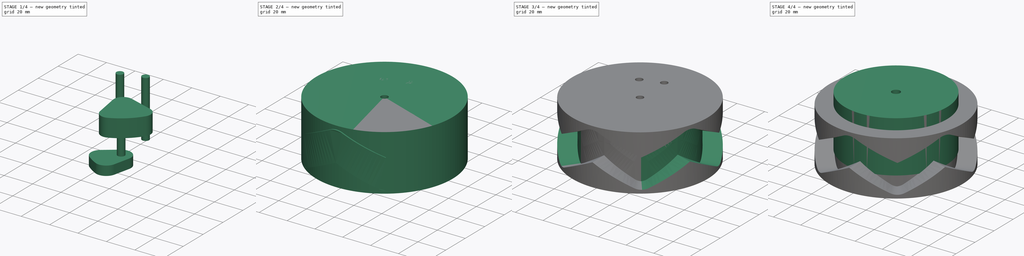
[diagram: build sequence overview — one tinted view per stage of 4, left to right]
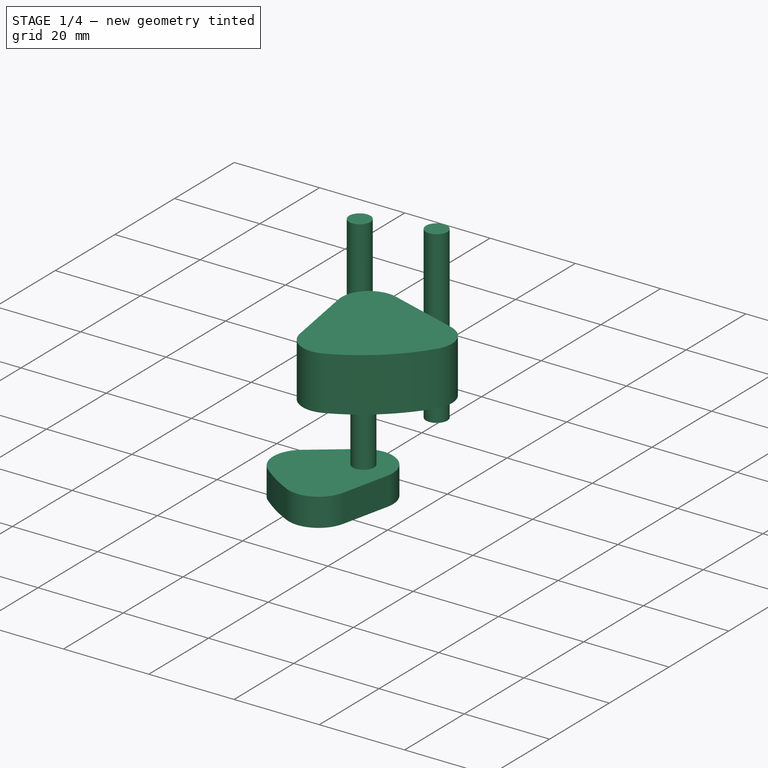
[diagram: stage 1 of 4 — iso view after this stage's code; geometry added in this stage tinted green]
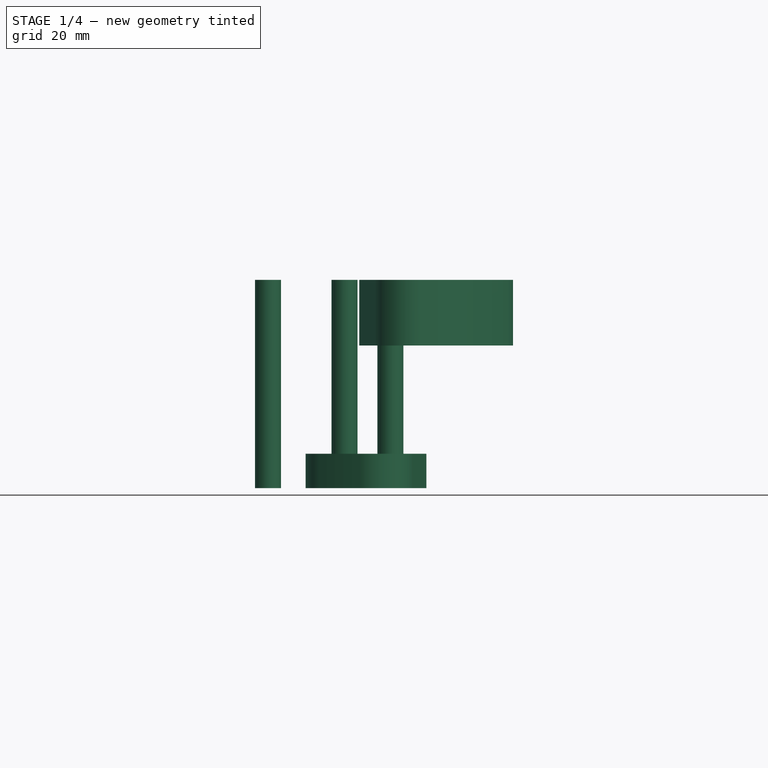
[diagram: stage 1 of 4 — front view after this stage's code; geometry added in this stage tinted green]
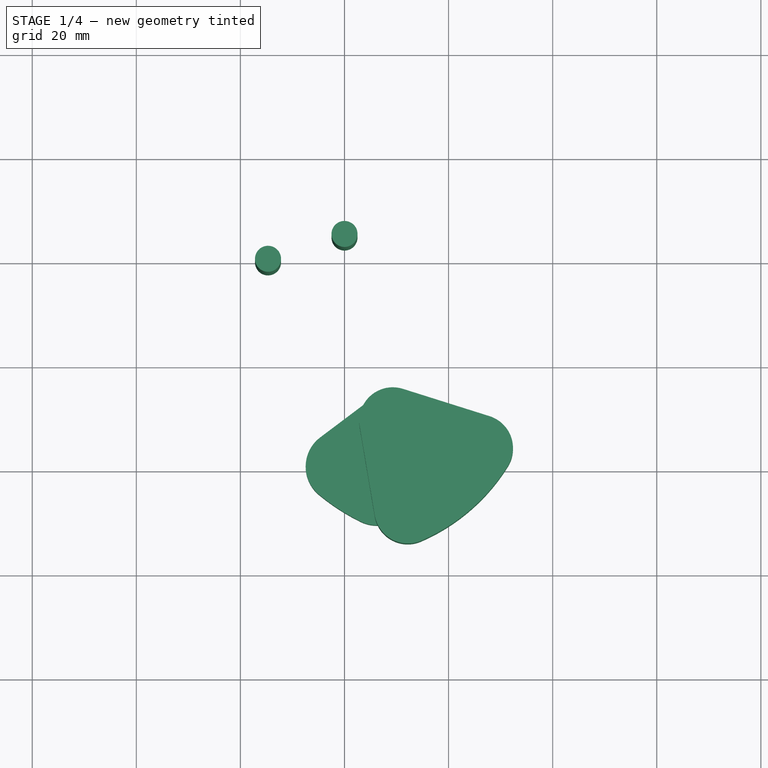
[diagram: stage 1 of 4 — top view after this stage's code; geometry added in this stage tinted green]
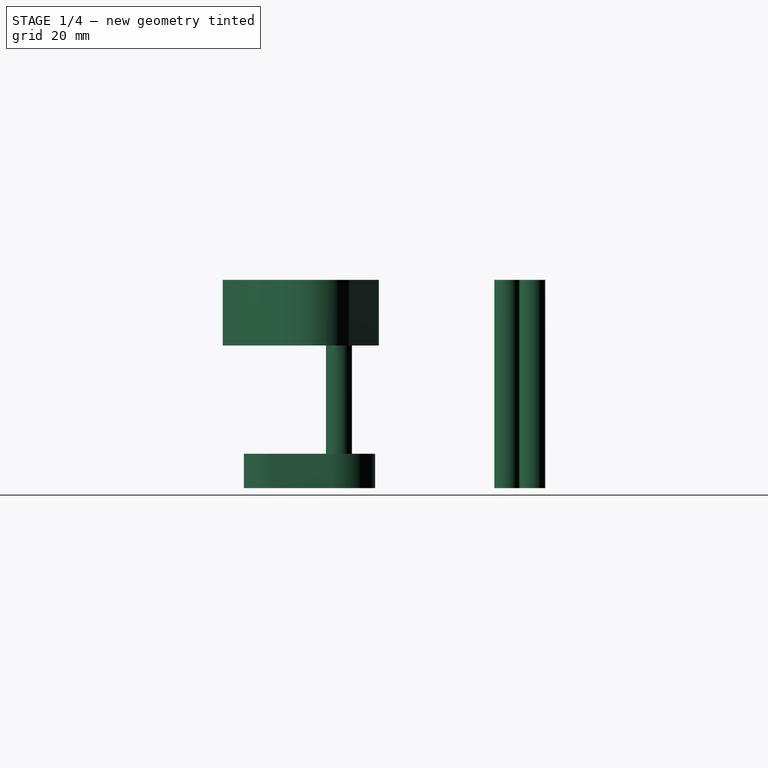
[diagram: stage 1 of 4 — right view after this stage's code; geometry added in this stage tinted green]
FCSTD DOCUMENT  (FreeCAD 0.22R38467 (Git))
Label: Cam Cylinder.FCStd
objects: Sketcher::SketchObject×5, Part::FeaturePython×4, Part::Cut×4, PartDesign::Line×4, Part::Extrusion×3, Part::Cylinder×1, App::VarSet×1, App::Part×1
note: 26 computed .brp shape members not serialized (recipe doc carries the construction recipe); baked Part::Feature solids carry a one-line shape summary decoded from their .brp

FEATURE [Sketcher::SketchObject] Sketch  label="Hole Profile"
  ArcFitTolerance = 1e-06
  AttachmentSupport = -> [Cut]
  FullyConstrained = true
  MakeInternals = false
  MapMode = 5
  Placement = pos=(0,0,40) rot=(0,0,1;0rad)
  sketch-geometry (6):
    g0: Circle CenterX=0 CenterY=25 CenterZ=0 NormalX=0 NormalY=0 NormalZ=1 AngleXU=0 Radius=2.5
    g1: LineSegment [constr] StartX=-14.6946 StartY=20.2254 StartZ=0 EndX=14.6946 EndY=-20.2254 EndZ=0
    g2: Circle CenterX=8.81678 CenterY=-12.1353 CenterZ=0 NormalX=0 NormalY=0 NormalZ=1 AngleXU=0 Radius=2.5
    g3: Circle [constr] CenterX=0 CenterY=0 CenterZ=0 NormalX=0 NormalY=0 NormalZ=1 AngleXU=0 Radius=25
    g4: Circle CenterX=-14.6946 CenterY=20.2254 CenterZ=0 NormalX=0 NormalY=0 NormalZ=1 AngleXU=0 Radius=2.5
    g5: Circle [constr] CenterX=0 CenterY=0 CenterZ=0 NormalX=0 NormalY=0 NormalZ=1 AngleXU=0 Radius=15
  constraints (16):
    c: PointOnObject(g-1,g1)
    c: Coincident(g3,g-1)
    c: Radius(g3) = 25
    c: PointOnObject(g0,g3)
    c: PointOnObject(g0,g-2)
    c: PointOnObject(g1,g3)
    c: Coincident(g4,g1)
    c: Equal(g2,g4)
    c: Equal(g4,g0)
    c: Angle(g1,g-2) = -0.628319
    c: Diameter(g5) = 30
    c: Coincident(g5,g3)
    c: Radius(g2) = 2.5
    c: PointOnObject(g1,g3)
    c: PointOnObject(g2,g5)
    c: PointOnObject(g2,g1)
FEATURE [Part::Extrusion] Extrude
  Base = -> Sketch
  Dir = (0,0,1)
  DirMode = 2
  FaceMakerClass = Part::FaceMakerBullseye
  FaceMakerMode = 3
  LengthFwd = 40
  LengthRev = 0
  Reversed = true
  Solid = true
  Symmetric = false
  expr: LengthFwd = VarSet.Base_CylinderHeight
FEATURE [PartDesign::Line] HoleAxis_1  label="Bottom AP"
  AttacherType = Attacher::AttachEngineLine
  AttachmentSupport = -> [Cut001]
  Length = 4.12311
  MapMode = 19
  ResizeMode = 1
FEATURE [PartDesign::Line] HoleAxis_2  label="Link Rod AP"
  AttacherType = Attacher::AttachEngineLine
  AttachmentSupport = -> [Cut001]
  Length = 7.04534
  MapMode = 19
  Placement = pos=(0,25,0) rot=(0,0,1;0rad)
  ResizeMode = 1
FEATURE [PartDesign::Line] HoleAxis_3  label="Control AP"
  AttacherType = Attacher::AttachEngineLine
  AttachmentOffset = pos=(0,0,0) rot=(0,1,0;3.14159rad)
  AttachmentSupport = -> [Cut001]
  Length = 7.04534
  MapMode = 19
  Placement = pos=(8.81678,-12.1353,0) rot=(0,1,0;3.14159rad)
  ResizeMode = 1
FEATURE [PartDesign::Line] HoleAxis_4  label="Top AP"
  AttacherType = Attacher::AttachEngineLine
  AttachmentOffset = pos=(0,0,1.5) rot=(0,0,1;0rad)
  AttachmentSupport = -> [Cut001]
  Length = 7.04534
  MapMode = 19
  Placement = pos=(0,0,41.5) rot=(0,0,1;0rad)
  ResizeMode = 1
FEATURE [Sketcher::SketchObject] Sketch001  label="Master Sketch"
  ArcFitTolerance = 1e-06
  FullyConstrained = false
  MakeInternals = false
  sketch-geometry (42):
    g0: Circle CenterX=-4e-16 CenterY=0 CenterZ=0 NormalX=0 NormalY=0 NormalZ=1 AngleXU=0 Radius=50
    g1: LineSegment [constr] StartX=-4e-16 StartY=0 StartZ=0 EndX=-15.4508 EndY=-47.5528 EndZ=0
    g2: LineSegment [constr] StartX=-4e-16 StartY=0 StartZ=0 EndX=15.4508 EndY=-47.5528 EndZ=0
    g3: LineSegment StartX=4.16347 StartY=-17.7687 StartZ=0 EndX=-5.80371 EndY=-32.7572 EndZ=0
    g4: LineSegment StartX=-6.93214 StartY=-16.3948 StartZ=0 EndX=-14.1307 EndY=-27.2198 EndZ=0
    g5: ArcOfCircle [constr] CenterX=1e-16 CenterY=-15 CenterZ=0 NormalX=0 NormalY=0 NormalZ=1 AngleXU=0 Radius=15 StartAngle=4.08407 EndAngle=5.34071
    g6: Circle CenterX=-9.04623 CenterY=-28.6036 CenterZ=0 NormalX=0 NormalY=0 NormalZ=1 AngleXU=0 Radius=2.5
    g7: Circle CenterX=1e-16 CenterY=-15 CenterZ=0 NormalX=0 NormalY=0 NormalZ=1 AngleXU=0 Radius=2.5
    g8: ArcOfCircle CenterX=-12.4904 CenterY=-6.69401 CenterZ=0 NormalX=0 NormalY=0 NormalZ=1 AngleXU=0 Radius=5 StartAngle=0.983956 EndAngle=4.12555
    g9: LineSegment StartX=-6.93214 StartY=-16.3948 StartZ=0 EndX=-15.2591 EndY=-10.8575 EndZ=0
    g10: LineSegment StartX=2.76866 StartY=-10.8365 StartZ=0 EndX=-9.72176 EndY=-2.53054 EndZ=0
    g11: ArcOfCircle CenterX=1e-16 CenterY=-15 CenterZ=0 NormalX=0 NormalY=0 NormalZ=1 AngleXU=0 Radius=5 StartAngle=5.69635 EndAngle=7.26714
    g12: ArcOfCircle CenterX=-9.96718 CenterY=-29.9885 CenterZ=0 NormalX=0 NormalY=0 NormalZ=1 AngleXU=0 Radius=5 StartAngle=2.55475 EndAngle=5.69635
    g13: ArcOfCircle CenterX=-9.96718 CenterY=-29.9885 CenterZ=0 NormalX=0 NormalY=0 NormalZ=1 AngleXU=0 Radius=2.7 StartAngle=2.55475 EndAngle=5.69635
    g14: ArcOfCircle CenterX=-8.30599 CenterY=-27.4904 CenterZ=0 NormalX=0 NormalY=0 NormalZ=1 AngleXU=0 Radius=2.7 StartAngle=5.69635 EndAngle=8.83794
    g15: LineSegment [constr] StartX=-12.2155 StartY=-28.4934 StartZ=0 EndX=-10.5543 EndY=-25.9953 EndZ=0
    g16: LineSegment StartX=-7.71891 StartY=-31.4836 StartZ=0 EndX=-6.05771 EndY=-28.9855 EndZ=0
    g17: LineSegment [constr] StartX=1e-16 StartY=-15 StartZ=0 EndX=-20.3856 EndY=-45.6555 EndZ=0
    g18: Circle CenterX=-12.4904 CenterY=-6.69401 CenterZ=0 NormalX=0 NormalY=0 NormalZ=1 AngleXU=0 Radius=2.5
    g19: ArcOfCircle CenterX=-4e-16 CenterY=0 CenterZ=0 NormalX=0 NormalY=0 NormalZ=1 AngleXU=0 Radius=27.6248 StartAngle=1.25664 EndAngle=1.88496
    g20: ArcOfCircle CenterX=-7.70217 CenterY=23.7048 CenterZ=0 NormalX=0 NormalY=0 NormalZ=1 AngleXU=0 Radius=2.7 StartAngle=1.88496 EndAngle=5.02655
    g21: ArcOfCircle CenterX=7.70217 CenterY=23.7048 CenterZ=0 NormalX=0 NormalY=0 NormalZ=1 AngleXU=0 Radius=2.7 StartAngle=4.39823 EndAngle=7.53982
    g22: ArcOfCircle CenterX=-4e-16 CenterY=0 CenterZ=0 NormalX=0 NormalY=0 NormalZ=1 AngleXU=0 Radius=22.2248 StartAngle=1.25664 EndAngle=1.88496
    g23: LineSegment [constr] StartX=-4e-16 StartY=0 StartZ=0 EndX=7.70217 EndY=23.7048 EndZ=0
    g24: LineSegment [constr] StartX=-4e-16 StartY=0 StartZ=0 EndX=-7.70217 EndY=23.7048 EndZ=0
    g25: Circle CenterX=-0.054258 CenterY=24.7641 CenterZ=0 NormalX=0 NormalY=0 NormalZ=1 AngleXU=0 Radius=2.5
    g26: ArcOfCircle CenterX=-15.3566 CenterY=-24.6032 CenterZ=0 NormalX=0 NormalY=0 NormalZ=1 AngleXU=0 Radius=5 StartAngle=5.39165 EndAngle=6.00104
    g27: ArcOfCircle CenterX=-15.3566 CenterY=-24.6032 CenterZ=0 NormalX=0 NormalY=0 NormalZ=1 AngleXU=0 Radius=4.39478 StartAngle=5.2351 EndAngle=6.15759
    g28: LineSegment [constr] StartX=-11.3849 StartY=-27.2444 StartZ=0 EndX=-13.3001 EndY=-25.9708 EndZ=0
    g29: LineSegment [constr] StartX=-13.3001 StartY=-25.9708 StartZ=0 EndX=-10.5543 EndY=-25.9953 EndZ=0
    g30: LineSegment [constr] StartX=-13.3001 StartY=-25.9708 StartZ=0 EndX=-12.2155 EndY=-28.4934 EndZ=0
    g31: LineSegment StartX=-10.9964 StartY=-25.1537 StartZ=0 EndX=-11.4964 EndY=-25.1493 EndZ=0
    g32: LineSegment StartX=-11.4964 StartY=-25.1493 StartZ=0 EndX=-13.3601 EndY=-27.9519 EndZ=0
    g33: LineSegment StartX=-13.3601 StartY=-27.9519 StartZ=0 EndX=-13.1626 EndY=-28.4112 EndZ=0
    g34: LineSegment [constr] StartX=-4e-16 StartY=0 StartZ=0 EndX=-75.0332 EndY=-40.2127 EndZ=0
    g35: LineSegment [constr] StartX=-17.7952 StartY=13.7094 StartZ=0 EndX=6.06492 EndY=-30.8114 EndZ=0
    g36: Circle CenterX=-4e-16 CenterY=0 CenterZ=0 NormalX=0 NormalY=0 NormalZ=1 AngleXU=0 Radius=11
    g37: Circle CenterX=-4e-16 CenterY=0 CenterZ=0 NormalX=0 NormalY=0 NormalZ=1 AngleXU=0 Radius=30
    g38: Circle [constr] CenterX=-6.1698 CenterY=-3.30659 CenterZ=0 NormalX=0 NormalY=0 NormalZ=1 AngleXU=0 Radius=11
    g39: Circle [constr] CenterX=4.407 CenterY=2.36185 CenterZ=0 NormalX=0 NormalY=0 NormalZ=1 AngleXU=0 Radius=30
    g40: LineSegment [constr] StartX=-13.8538 StartY=-26.8035 StartZ=0 EndX=-12.6421 EndY=-29.6216 EndZ=0
    g41: LineSegment [constr] StartX=-12.7463 StartY=-25.1381 StartZ=0 EndX=-9.67889 EndY=-25.1655 EndZ=0
  constraints (104):
    c: Diameter(g0) = 100
    c: Coincident(g0,g-1)
    c: Coincident(g1,g0)
    c: PointOnObject(g1,g0)
    c: Coincident(g2,g0)
    c: Symmetric(g2,g1,g-2)
    c: Angle(g1,g2) = 0.628319
    c: PointOnObject(g5,g1)
    c: PointOnObject(g5,g2)
    c: Diameter(g6) = 5
    c: Equal(g7,g6)
    c: Tangent(g8,g9) = 1.5708
    c: Tangent(g8,g10) = -1.5708
    c: Coincident(g9,g4)
    c: Parallel(g3,g4)
    c: Parallel(g9,g10)
    c: Coincident(g11,g7)
    c: Tangent(g11,g3) = 1.5708
    c: Tangent(g11,g10) = -1.5708
    c: Coincident(g7,g5)
    c: PointOnObject(g5,g-2)
    c: DistanceY(g5,g0) = 15
    c: Perpendicular(g9,g4)
    c: Equal(g11,g8)
    c: Radius(g5) = 15
    c: Equal(g12,g8)
    c: Tangent(g12,g3) = 1.5708
    c: Tangent(g12,g4) = -1.5708
    c: Radius(g8) = 5
    c: Distance(g8,g5) = 15
    c: Tangent(g13,g15) = 1.5708
    c: Tangent(g13,g16) = -1.5708
    c: Tangent(g14,g15) = 1.5708
    c: Tangent(g14,g16) = -1.5708
    c: Equal(g13,g14)
    c: Distance(g13,g14) = 3
    c: Radius(g14) = 2.7
    c: Coincident(g17,g5)
    c: PointOnObject(g17,g0)
    c: PointOnObject(g13,g17)
    c: Distance(g14,g5) = 15
    c: PointOnObject(g14,g17)
    c: Coincident(g13,g12)
    c: Distance(g6,g0) = 30
    c: PointOnObject(g6,g17)
    c: Diameter(g18) = 5
    c: Coincident(g18,g8)
    c: Coincident(g19,g22)
    c: Tangent(g22,g21) = 1.5708
    c: Tangent(g22,g20) = 1.5708
    c: Tangent(g19,g21) = -1.5708
    c: Tangent(g19,g20) = -1.5708
    c: Coincident(g19,g0)
    c: Coincident(g23,g0)
    c: Coincident(g23,g21)
    c: Coincident(g24,g0)
    c: Coincident(g24,g20)
    c: Angle(g23,g24) = 0.628319
    c: Distance(g20,g19) = 5.4
    c: Angle(g23,g-2) = 0.314159
    c: Diameter(g25) = 5
    c: Coincident(g26,g14)
    c: Coincident(g26,g13)
    c: Coincident(g27,g26)
    c: Symmetric(g15,g15,g28)
    c: Perpendicular(g15,g28)
    c: Coincident(g29,g14)
    c: Coincident(g30,g29)
    c: Coincident(g30,g13)
    c: Coincident(g27,g31)
    c: Coincident(g31,g32)
    c: Coincident(g32,g33)
    c: Coincident(g33,g27)
    c: Distance(g31) = 0.5
    c: Coincident(g28,g29)
    c: PointOnObject(g28,g4)
    c: Radius(g26) = 5
    c: Equal(g33,g31)
    c: Coincident(g34,g0)
    c: PointOnObject(g8,g34)
    c: Perpendicular(g34,g35)
    c: Diameter(g36) = 22
    c: Coincident(g36,g0)
    c: Diameter(g37) = 60
    c: Coincident(g37,g0)
    c: PointOnObject(g38,g34)
    c: Distance(g38,g0) = 7
    c: PointOnObject(g39,g34)
    c: Distance(g39,g0) = 5
    c: Equal(g39,g37)
    c: Equal(g38,g36)
    c: PointOnObject(g40,g4)
    c: PointOnObject(g40,g13)
    c: PointOnObject(g41,g4)
    c: PointOnObject(g41,g14)
    c: Parallel(g41,g29)
    c: Parallel(g30,g40)
    c: Distance(g40,g28) = 1
    c: Distance(g41,g28) = 1
    c: PointOnObject(g31,g41)
    c: PointOnObject(g32,g40)
    c: PointOnObject(g27,g40)
    c: PointOnObject(g27,g41)
    c: Distance(g41,g31) = 1.25
FEATURE [Sketcher::SketchObject] Sketch002  label="Actuator pocket profile"
  ArcFitTolerance = 1e-06
  AttachmentSupport = -> [Cut001]
  FullyConstrained = false
  MakeInternals = false
  MapMode = 5
  Placement = pos=(0,0,40) rot=(0,0,1;0rad)
  sketch-geometry (7):
    g0: ArcOfCircle CenterX=9.28114 CenterY=-10.9109 CenterZ=0 NormalX=0 NormalY=0 NormalZ=1 AngleXU=0 Radius=6.44758 StartAngle=1.26535 EndAngle=3.30889
    g1: ArcOfCircle CenterX=12.171 CenterY=-28.0235 CenterZ=0 NormalX=0 NormalY=0 NormalZ=1 AngleXU=0 Radius=6.44758 StartAngle=3.30889 EndAngle=5.12212
    g2: LineSegment StartX=11.22 StartY=-4.76175 StartZ=0 EndX=27.8677 EndY=-10.011 EndZ=0
    g3: LineSegment StartX=2.92357 StartY=-11.9845 StartZ=0 EndX=5.81347 EndY=-29.0971 EndZ=0
    g4: ArcOfCircle CenterX=25.9288 CenterY=-16.1601 CenterZ=0 NormalX=0 NormalY=0 NormalZ=1 AngleXU=0 Radius=6.44758 StartAngle=5.72584 EndAngle=7.54854
    g5: LineSegment [constr] StartX=0 StartY=0 StartZ=0 EndX=38.9895 EndY=-45.8361 EndZ=0
    g6: ArcOfCircle CenterX=0 CenterY=0 CenterZ=0 NormalX=0 NormalY=0 NormalZ=1 AngleXU=0 Radius=37 StartAngle=5.12212 EndAngle=5.72584
  constraints (14):
    c: Tangent(g0,g2) = 1.5708
    c: Tangent(g0,g3) = -1.5708
    c: Tangent(g1,g3) = -1.5708
    c: Equal(g0,g1)
    c: Equal(g1,g4)
    c: Tangent(g4,g2) = 1.5708
    c: Coincident(g5,g-1)
    c: Distance(g1,g4) = 22
    c: PointOnObject(g0,g5)
    c: Distance(g0,g0) = 11
    c: Coincident(g6,g5)
    c: Tangent(g6,g1) = -1.5708
    c: Tangent(g6,g4) = -1.5708
    c: Radius(g6) = 37
FEATURE [Part::Extrusion] Extrude001  label="Actuator Pocket"
  Base = -> Sketch002
  Dir = (0,0,1)
  DirMode = 2
  FaceMakerClass = Part::FaceMakerBullseye
  FaceMakerMode = 3
  LengthFwd = 12.6
  LengthRev = 0
  Reversed = true
  Solid = true
  Symmetric = false
FEATURE [Sketcher::SketchObject] Sketch003  label="Ctrl Pocket Profile"
  ArcFitTolerance = 1e-06
  AttachmentSupport = -> [Cut002]
  FullyConstrained = false
  MakeInternals = false
  MapMode = 5
  Placement = pos=(0,0,0) rot=(1,0,0;3.14159rad)
  sketch-geometry (7):
    g0: LineSegment [constr] StartX=20.9255 StartY=-6.66032 StartZ=0 EndX=-0.898333 EndY=27.1 EndZ=0
    g1: ArcOfCircle CenterX=8.74 CenterY=12.19 CenterZ=0 NormalX=0 NormalY=0 NormalZ=1 AngleXU=0 Radius=7 StartAngle=4.06766 EndAngle=6.50484
    g2: ArcOfCircle CenterX=-0.45953 CenterY=19.1073 CenterZ=0 NormalX=0 NormalY=0 NormalZ=1 AngleXU=0 Radius=7 StartAngle=2.26352 EndAngle=4.06766
    g3: ArcOfCircle CenterX=6.20957 CenterY=23.4184 CenterZ=0 NormalX=0 NormalY=0 NormalZ=1 AngleXU=0 Radius=7 StartAngle=0.221657 EndAngle=2.0258
    g4: ArcOfCircle CenterX=20.9255 CenterY=-6.66032 CenterZ=0 NormalX=0 NormalY=0 NormalZ=1 AngleXU=0 Radius=40.4856 StartAngle=2.0258 EndAngle=2.26352
    g5: LineSegment StartX=-4.66639 StartY=13.5124 StartZ=0 EndX=4.53314 EndY=6.59515 EndZ=0
    g6: LineSegment StartX=15.5687 StartY=13.7289 StartZ=0 EndX=13.0383 EndY=24.9573 EndZ=0
  constraints (16):
    c: Equal(g3,g1)
    c: Equal(g1,g2)
    c: Equal(g5,g6)
    c: Radius(g1) = 7
    c: Tangent(g4,g2) = -1.5708
    c: Tangent(g5,g2) = -1.5708
    c: Tangent(g5,g1) = -1.5708
    c: Tangent(g6,g1) = -1.5708
    c: Tangent(g6,g3) = -1.5708
    c: Coincident(g0,g4)
    c: Symmetric(g3,g2,g0)
    c: Tangent(g4,g3) = -1.5708
    c: DistanceY(g-1,g1) = 12.19
    c: DistanceX(g-1,g1) = 8.74
    c: Distance(g3,g1) = 11.51
    c: Angle(g-2,g6) = 0.221657
FEATURE [Part::Extrusion] Extrude002  label="Control Arm Pocket"
  Base = -> Sketch003
  Dir = (0,0,-1)
  DirMode = 2
  FaceMakerClass = Part::FaceMakerBullseye
  FaceMakerMode = 3
  LengthFwd = 6.6
  LengthRev = 0
  Reversed = true
  Solid = true
  Symmetric = false
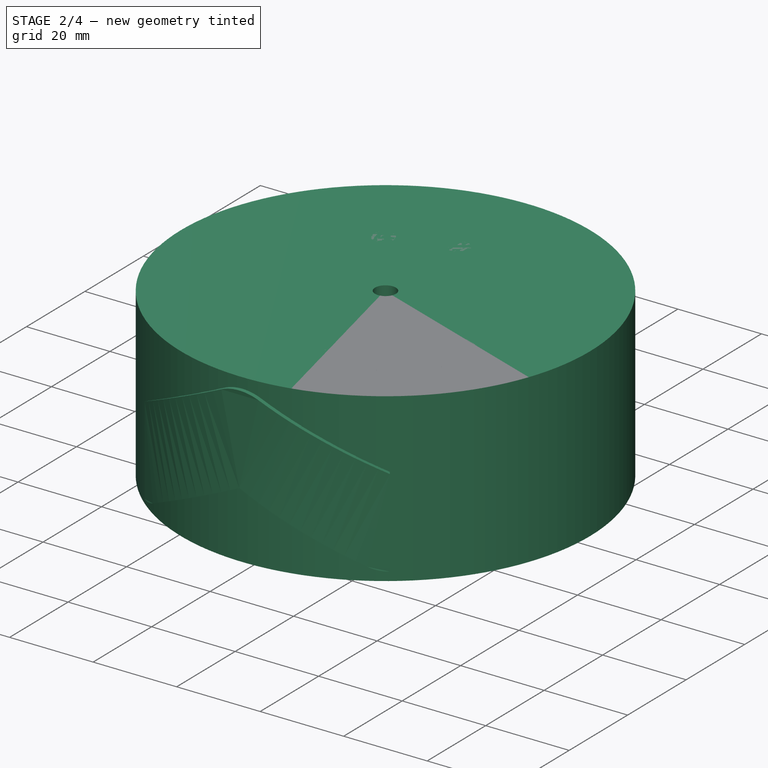
[diagram: stage 2 of 4 — iso view after this stage's code; geometry added in this stage tinted green]
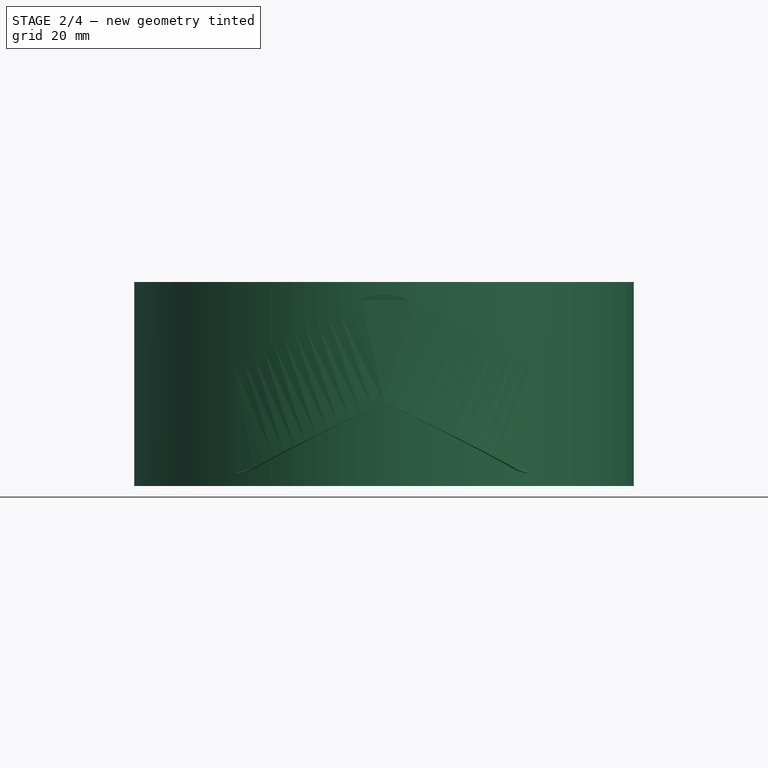
[diagram: stage 2 of 4 — front view after this stage's code; geometry added in this stage tinted green]
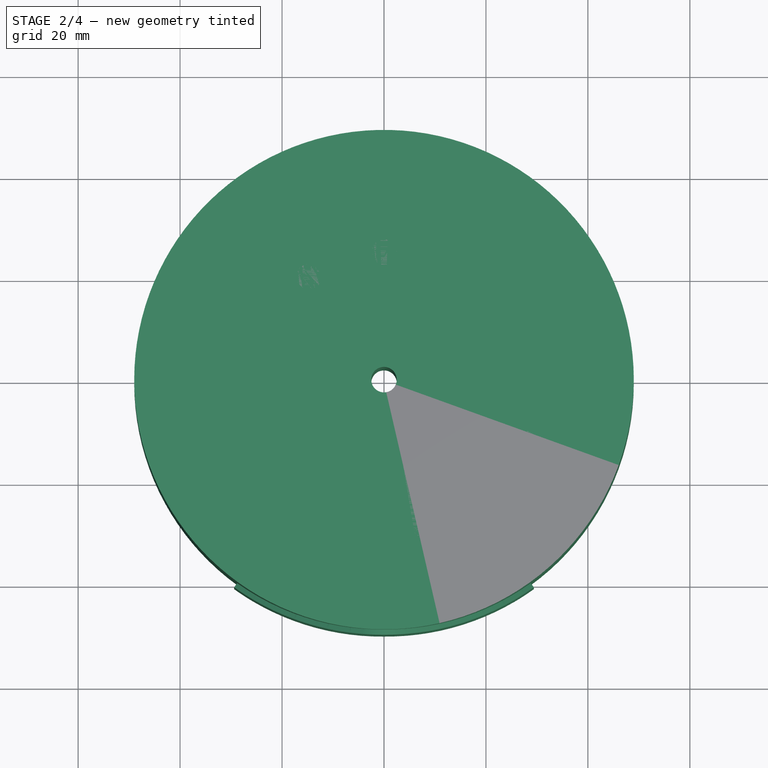
[diagram: stage 2 of 4 — top view after this stage's code; geometry added in this stage tinted green]
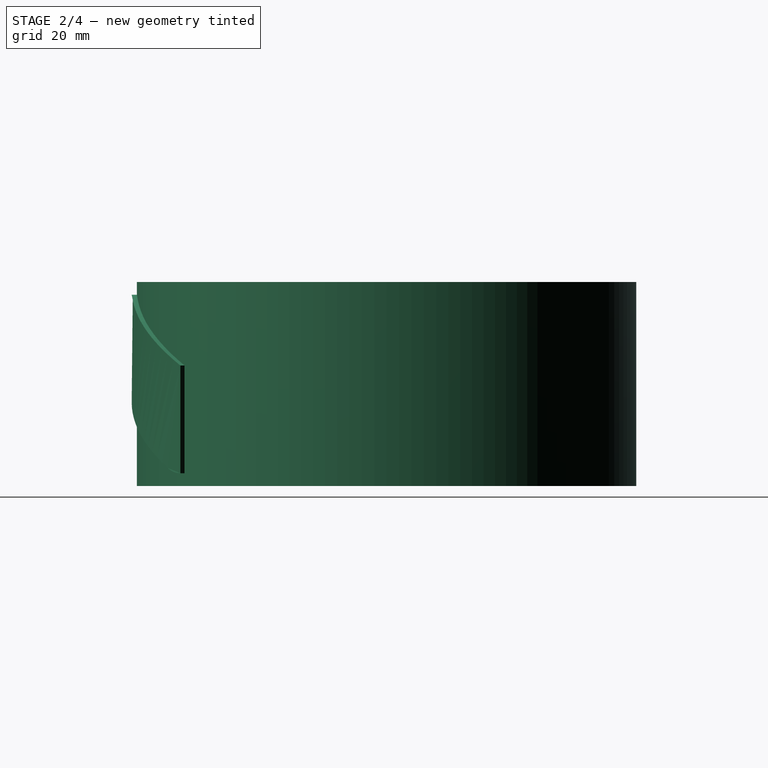
[diagram: stage 2 of 4 — right view after this stage's code; geometry added in this stage tinted green]
FEATURE [Part::Cylinder] Cylinder
  Angle = 72
  AttacherType = Attacher::AttachEngine3D
  FirstAngle = 0
  Height = 40
  Placement = pos=(0,0,0) rot=(0,0,1;-2.19911rad)
  Radius = 49
  SecondAngle = 0
  expr: .Placement.Rotation.Angle = -90 ° - 180 ° / VarSet.Peaks
  expr: Angle = 360 / VarSet.Peaks
  expr: Height = VarSet.Base_CylinderHeight
  expr: Radius = VarSet.Base_CylinderRadius
FEATURE [App::VarSet] VarSet
  Base_CylinderHeight = 40
  Base_CylinderRadius = 49
  BottomPad = 2.5
  CamTravel = 15
  GrooveDepth = 12
  InnerRadius = 2.5
  NomGrooveWidth = 20
  Peaks = 5
  TopPad = 2.5
  expr: Base_CylinderHeight = NomGrooveWidth + CamTravel + TopPad + BottomPad
FEATURE [Sketcher::SketchObject] Mapped_Sketch
  ArcFitTolerance = 1e-06
  AttachmentSupport = -> [Cylinder]
  FullyConstrained = true
  MakeInternals = false
  expr: .Constraints.CamTravel = VarSet.CamTravel
  expr: .Constraints.CylinderHeight = Cylinder.Height
  expr: .Constraints.ForcedTrackWidth = VarSet.NomGrooveWidth
  expr: .Constraints.NomTrackWidth = VarSet.NomGrooveWidth
  expr: .Constraints.arclength = 2 * pi * Cylinder.Radius / VarSet.Peaks
  expr: Constraints[33] = VarSet.NomGrooveWidth / 2 + VarSet.TopPad
  sketch-geometry (21):
    g0: LineSegment [constr] StartX=0 StartY=0 StartZ=0 EndX=61.5752 EndY=0 EndZ=0
    g1: LineSegment [constr] StartX=61.5752 StartY=0 StartZ=0 EndX=61.5752 EndY=40 EndZ=0
    g2: LineSegment [constr] StartX=61.5752 StartY=40 StartZ=0 EndX=0 EndY=40 EndZ=0
    g3: LineSegment [constr] StartX=0 StartY=40 StartZ=0 EndX=0 EndY=0 EndZ=0
    g4: ArcOfCircle [constr] CenterX=0 CenterY=27.5 CenterZ=0 NormalX=0 NormalY=0 NormalZ=1 AngleXU=0 Radius=10 StartAngle=4.71239 EndAngle=7.85398
    g5: Circle [constr] CenterX=30.7876 CenterY=12.5 CenterZ=0 NormalX=0 NormalY=0 NormalZ=1 AngleXU=0 Radius=10
    g6: ArcOfCircle [constr] CenterX=61.5752 CenterY=27.5 CenterZ=0 NormalX=0 NormalY=0 NormalZ=1 AngleXU=0 Radius=10 StartAngle=1.5708 EndAngle=4.71239
    g7: LineSegment StartX=0 StartY=37.5 StartZ=0 EndX=0 EndY=16.3763 EndZ=0
    g8: LineSegment StartX=61.5752 StartY=37.5 StartZ=0 EndX=61.5752 EndY=16.3763 EndZ=0
    g9: LineSegment StartX=4.37991 StartY=36.4898 StartZ=0 EndX=30.7876 EndY=23.6237 EndZ=0
    g10: LineSegment StartX=30.7876 StartY=23.6237 StartZ=0 EndX=57.1953 EndY=36.4898 EndZ=0
    g11: LineSegment StartX=35.1675 StartY=3.51021 StartZ=0 EndX=61.5752 EndY=16.3763 EndZ=0
    g12: LineSegment StartX=26.4077 StartY=3.51021 StartZ=0 EndX=0 EndY=16.3763 EndZ=0
    g13: ArcOfCircle CenterX=30.7876 CenterY=12.5 CenterZ=0 NormalX=0 NormalY=0 NormalZ=1 AngleXU=0 Radius=10 StartAngle=4.25903 EndAngle=5.16575
    g14: LineSegment [constr] StartX=30.7876 StartY=12.5 StartZ=0 EndX=30.7876 EndY=23.6237 EndZ=0
    g15: LineSegment [constr] StartX=0 StartY=12.5 StartZ=0 EndX=61.5752 EndY=12.5 EndZ=0
    g16: ArcOfCircle CenterX=0 CenterY=27.5 CenterZ=0 NormalX=0 NormalY=0 NormalZ=1 AngleXU=0 Radius=10 StartAngle=1.11743 EndAngle=1.5708
    g17: ArcOfCircle CenterX=61.5752 CenterY=27.5 CenterZ=0 NormalX=0 NormalY=0 NormalZ=1 AngleXU=0 Radius=10 StartAngle=1.5708 EndAngle=2.02416
    g18: LineSegment [constr] StartX=56.9653 StartY=14.1303 StartZ=0 EndX=48.2055 EndY=32.1099 EndZ=0
    g19: LineSegment [constr] StartX=4.60989 StartY=14.1303 StartZ=0 EndX=13.3697 EndY=32.1099 EndZ=0
    g20: LineSegment [constr] StartX=22.0278 StartY=5.64414 StartZ=0 EndX=30.7876 EndY=23.6237 EndZ=0
  constraints (62):
    c: Coincident(g0,g-1)
    c: Coincident(g0,g1)
    c: Coincident(g1,g2)
    c: Coincident(g2,g3)
    c: Coincident(g3,g0)
    c: Horizontal(g0)
    c: Horizontal(g2)
    c: Vertical(g1)
    c: Vertical(g3)
    c: DistanceX(g2,g2) = 61.5752  'arclength'
    c: PointOnObject(g4,g3)
    c: PointOnObject(g4,g3)
    c: PointOnObject(g6,g1)
    c: Equal(g6,g4)
    c: Equal(g4,g5)
    c: Horizontal(g4,g6)
    c: DistanceY(g5,g4) = 15  'CamTravel'
    c: PointOnObject(g6,g1)
    c: Coincident(g7,g4)
    c: Vertical(g7)
    c: Coincident(g10,g9)
    c: PointOnObject(g11,g5)
    c: Coincident(g13,g5)
    c: Tangent(g13,g11) = -1.5708
    c: Tangent(g13,g12) = 1.5708
    c: Coincident(g9,g14)
    c: Vertical(g14)
    c: Coincident(g14,g5)
    c: PointOnObject(g15,g3)
    c: Horizontal(g15)
    c: PointOnObject(g15,g1)
    c: Symmetric(g15,g15,g5)
    c: Diameter(g5) = 20  'NomTrackWidth'
    c: DistanceY(g5) = 12.5
    c: Coincident(g16,g4)
    c: Coincident(g16,g4)
    c: Tangent(g16,g9) = 1.5708
    c: DistanceY(g1,g1) = 40  'CylinderHeight'
    c: PointOnObject(g6,g1)
    c: Coincident(g17,g6)
    c: Coincident(g17,g8)
    c: PointOnObject(g8,g1)
    c: Tangent(g17,g10) = 1.5708
    c: PointOnObject(g18,g10)
    c: Perpendicular(g11,g18)
    c: Distance(g18) = 20  'ForcedTrackWidth'
    c: Coincident(g11,g8)
    c: PointOnObject(g8,g1)
    c: Tangent(g18,g6)
    c: PointOnObject(g18,g11)
    c: Equal(g17,g6)
    c: Coincident(g12,g7)
    c: PointOnObject(g19,g12)
    c: PointOnObject(g19,g9)
    c: Perpendicular(g12,g19)
    c: Tangent(g19,g4)
    c: Equal(g19,g18)
    c: PointOnObject(g4,g3)
    c: PointOnObject(g20,g12)
    c: Perpendicular(g12,g20)
    c: Coincident(g20,g9)
    c: Equal(g20,g18)
FEATURE [Part::FeaturePython] Sketch_On_Surface  # WARN: FeaturePython — macro-defined, semantics opaque (R4)
  ConstructionBounds = true
  FillExtrusion = true
  FillFaces = true
  Offset = -12
  ReverseU = false
  ReverseV = false
  Sketch = -> Mapped_Sketch
  SwapUV = false
  Thickness = 13
  expr: Offset = -VarSet.GrooveDepth
  expr: Thickness = VarSet.GrooveDepth + 1 mm
FEATURE [Part::FeaturePython] Tube  # WARN: FeaturePython — macro-defined, semantics opaque (R4)
  AttacherType = Attacher::AttachEngine3D
  Height = 40
  InnerRadius = 2.5
  OuterRadius = 49
  expr: Height = Cylinder.Height
  expr: InnerRadius = VarSet.InnerRadius
  expr: OuterRadius = Cylinder.Radius
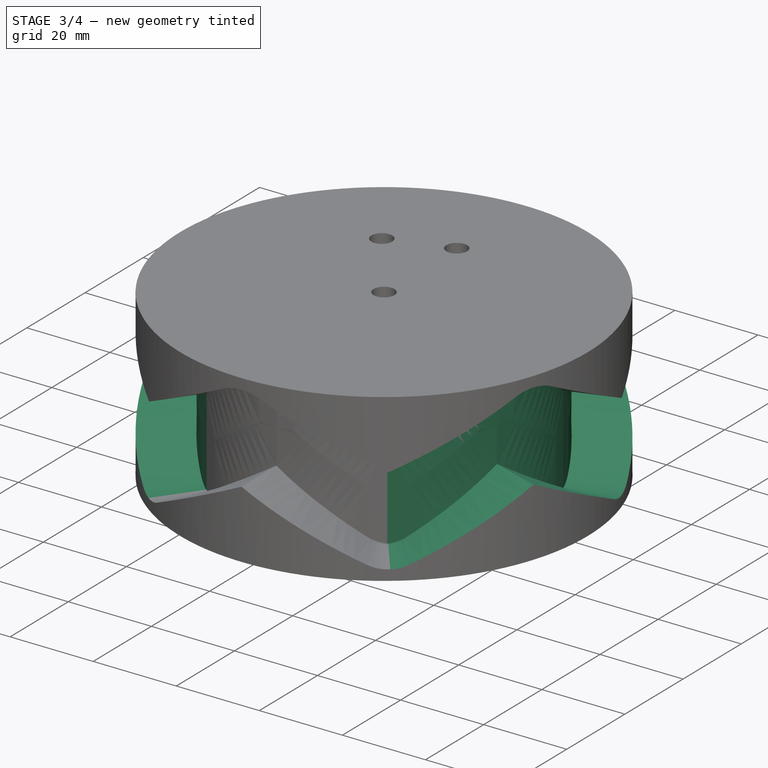
[diagram: stage 3 of 4 — iso view after this stage's code; geometry added in this stage tinted green]
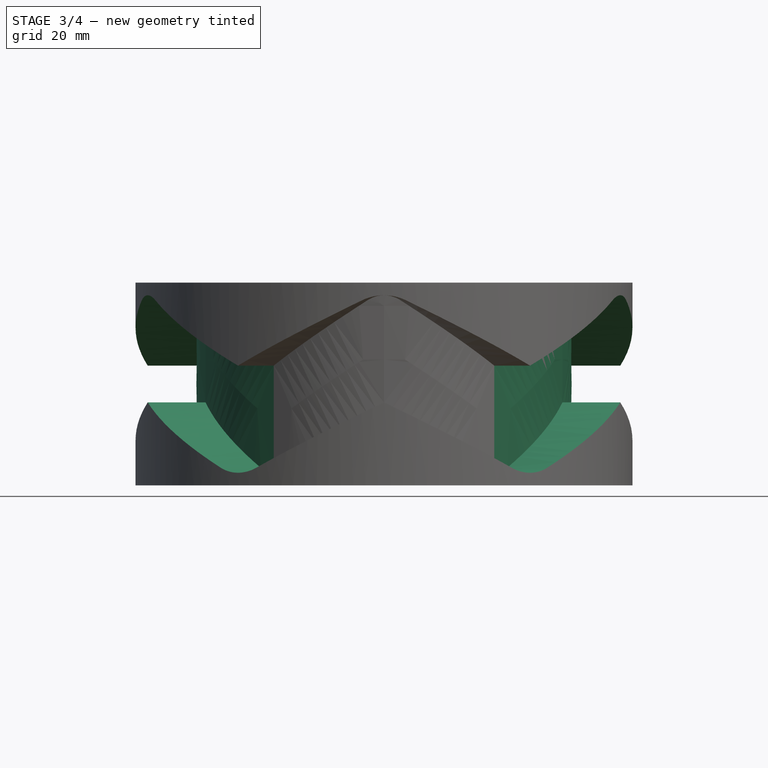
[diagram: stage 3 of 4 — front view after this stage's code; geometry added in this stage tinted green]
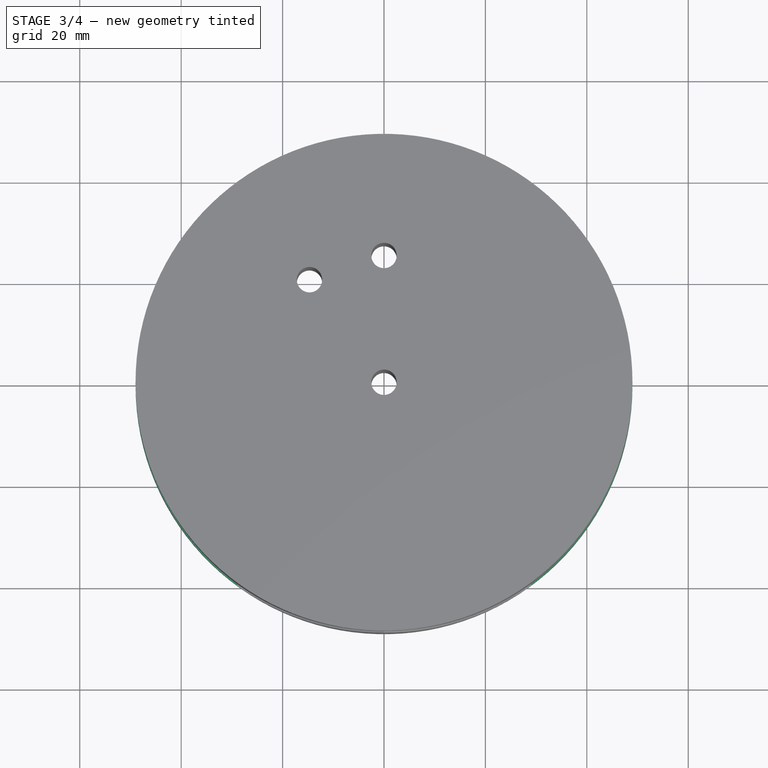
[diagram: stage 3 of 4 — top view after this stage's code; geometry added in this stage tinted green]
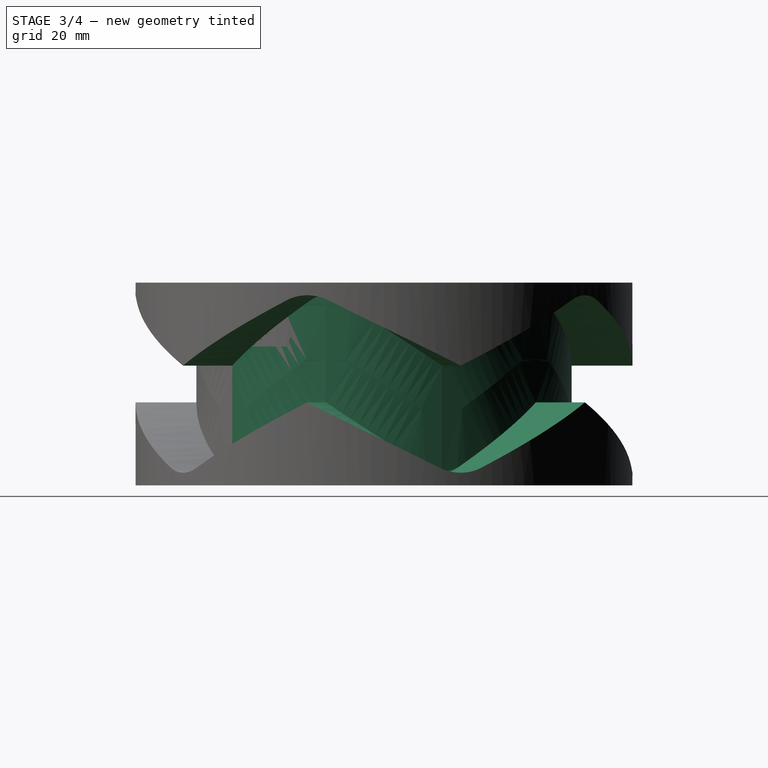
[diagram: stage 3 of 4 — right view after this stage's code; geometry added in this stage tinted green]
FEATURE [Part::FeaturePython] Array  # Draft array (typed FeaturePython)
  Angle = 360
  ArrayType = 1
  Axis = (0,0,1)
  Base = -> Sketch_On_Surface
  Center = (0,0,0)
  Count = 5
  Fuse = true
  IntervalAxis = (0,0,0)
  IntervalX = (50,0,0)
  IntervalY = (0,50,0)
  IntervalZ = (0,0,50)
  NumberCircles = 3
  NumberPolar = 5
  NumberX = 2
  NumberY = 2
  NumberZ = 1
  RadialDistance = 50
  Symmetry = 1
  TangentialDistance = 25
  expr: NumberPolar = VarSet.Peaks
FEATURE [Part::Cut] Cut
  Base = -> Tube
  Tool = -> Array
FEATURE [Part::Cut] Cut001
  Base = -> Cut
  Refine = true
  Tool = -> Extrude
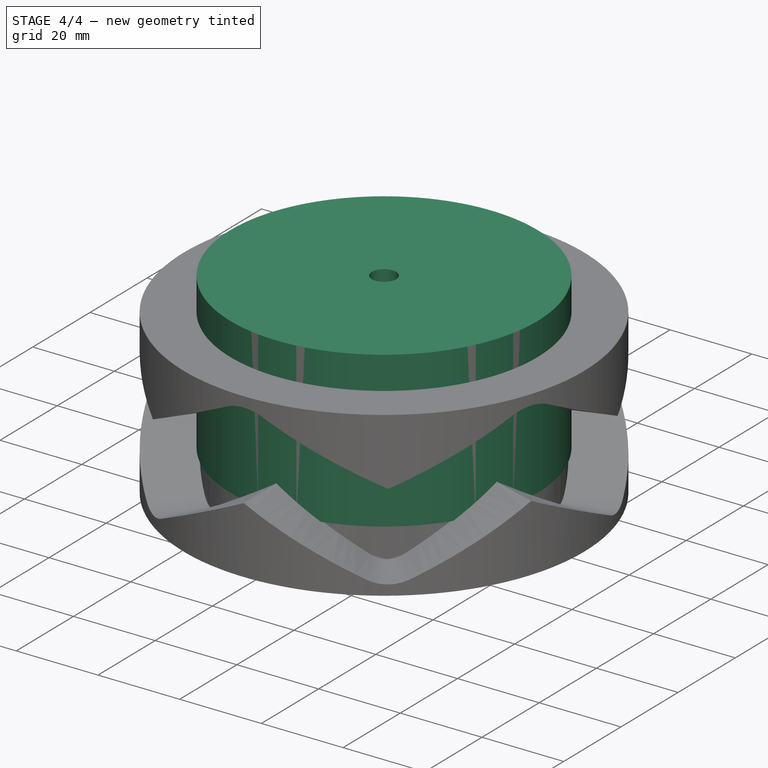
[diagram: stage 4 of 4 — iso view after this stage's code; geometry added in this stage tinted green]
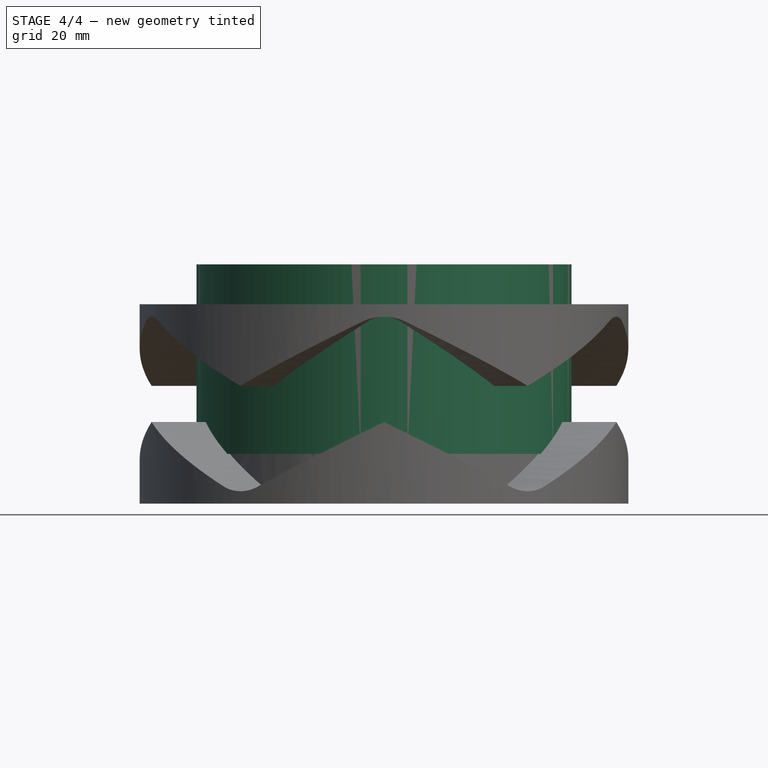
[diagram: stage 4 of 4 — front view after this stage's code; geometry added in this stage tinted green]
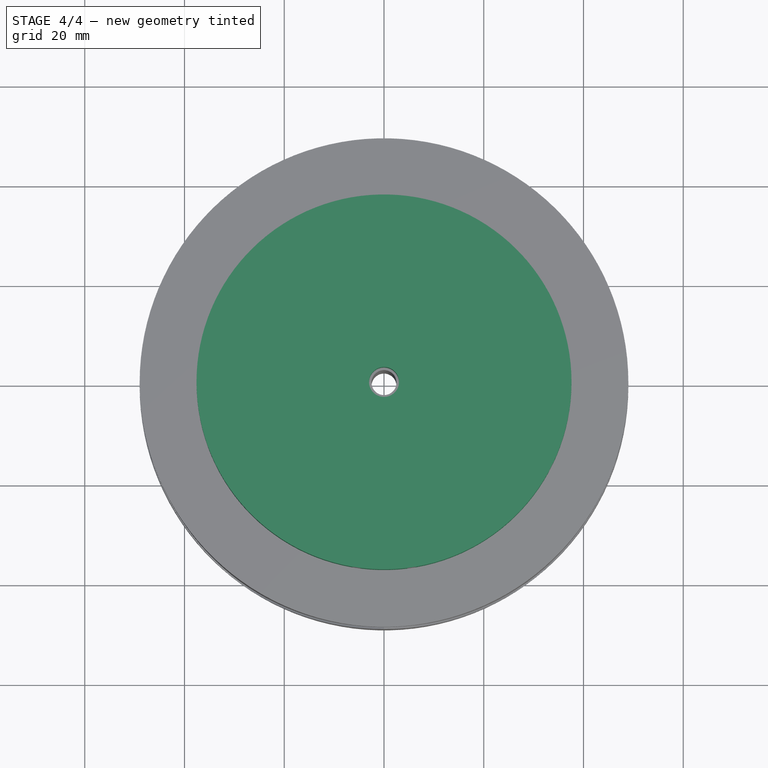
[diagram: stage 4 of 4 — top view after this stage's code; geometry added in this stage tinted green]
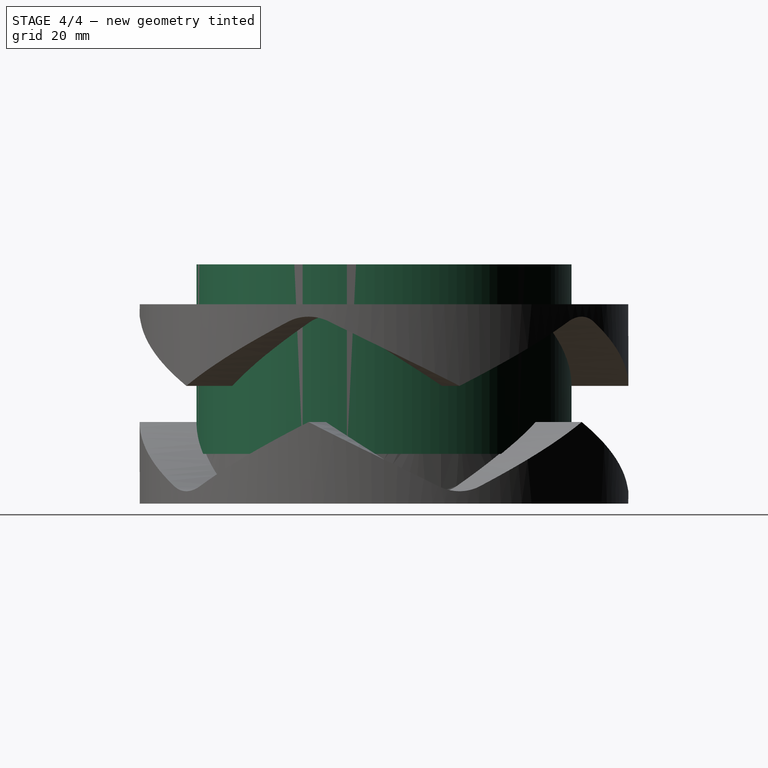
[diagram: stage 4 of 4 — right view after this stage's code; geometry added in this stage tinted green]
FEATURE [Part::FeaturePython] Tube001  label="Colour for render"  # WARN: FeaturePython — macro-defined, semantics opaque (R4)
  AttacherType = Attacher::AttachEngine3D
  Height = 38
  InnerRadius = 3
  OuterRadius = 37.6
  Placement = pos=(0,0,10) rot=(0,0,1;0rad)
FEATURE [Part::Cut] Cut002
  Base = -> Cut001
  Refine = true
  Tool = -> Extrude001
FEATURE [Part::Cut] Cut003
  Base = -> Cut002
  Refine = true
  Tool = -> Extrude002
FEATURE [App::Part] Part  label="Cam Groove"
  Group = -> [VarSet,Cylinder,HoleAxis_1,Tube001,HoleAxis_2,HoleAxis_3,HoleAxis_4,Extrude002,Sketch,Array,Sketch_On_Surface,Mapped_Sketch,Sketch002,Sketch003,Tube,Extrude,Cut002,Extrude001,Cut001,Cut,Cut003]
  Origin = -> Origin
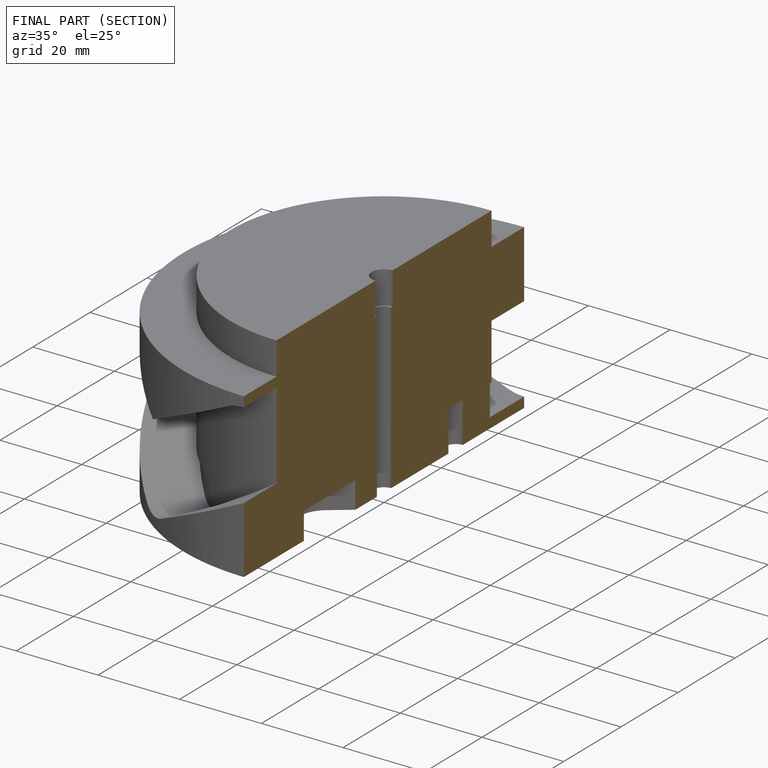
[diagram: finished part — half-section view (interior)]
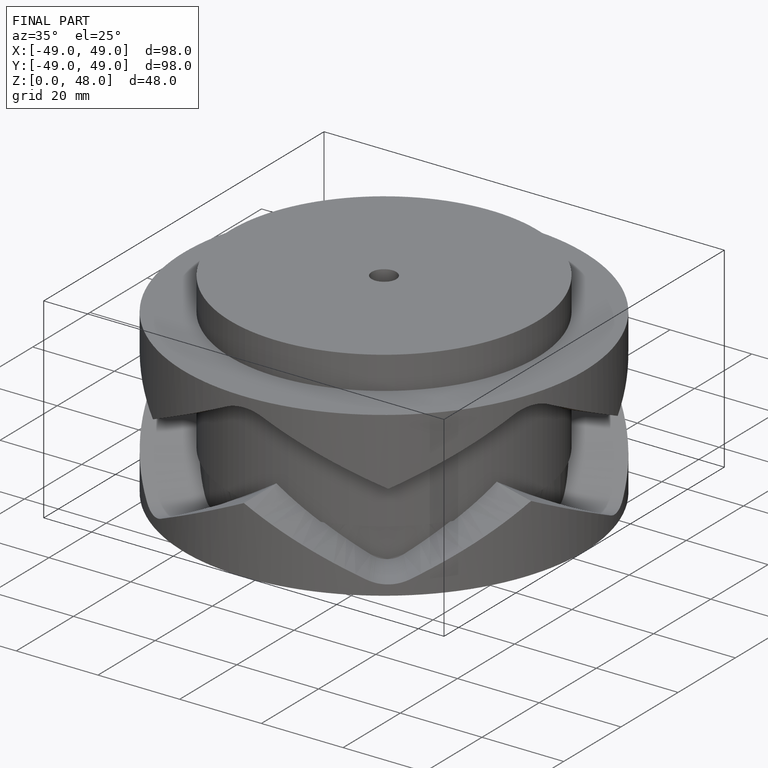
[diagram: finished part — iso view with bounding-box wireframe]
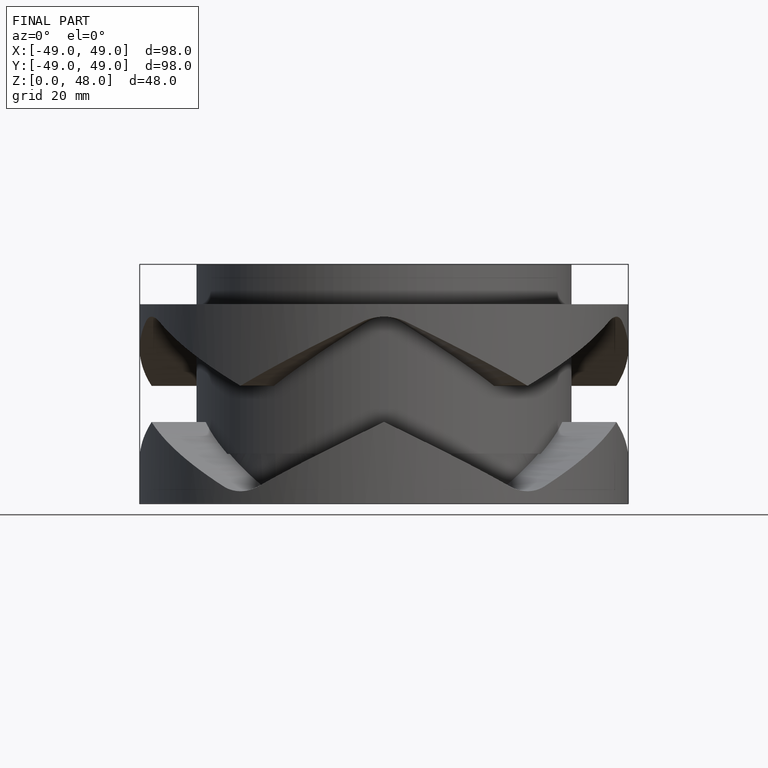
[diagram: finished part — front view with bounding-box wireframe]
